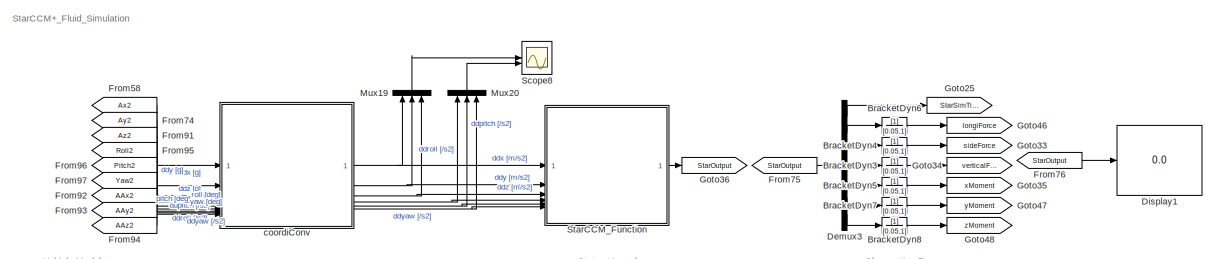
[diagram: root canvas - part 1/2, full width, top band]
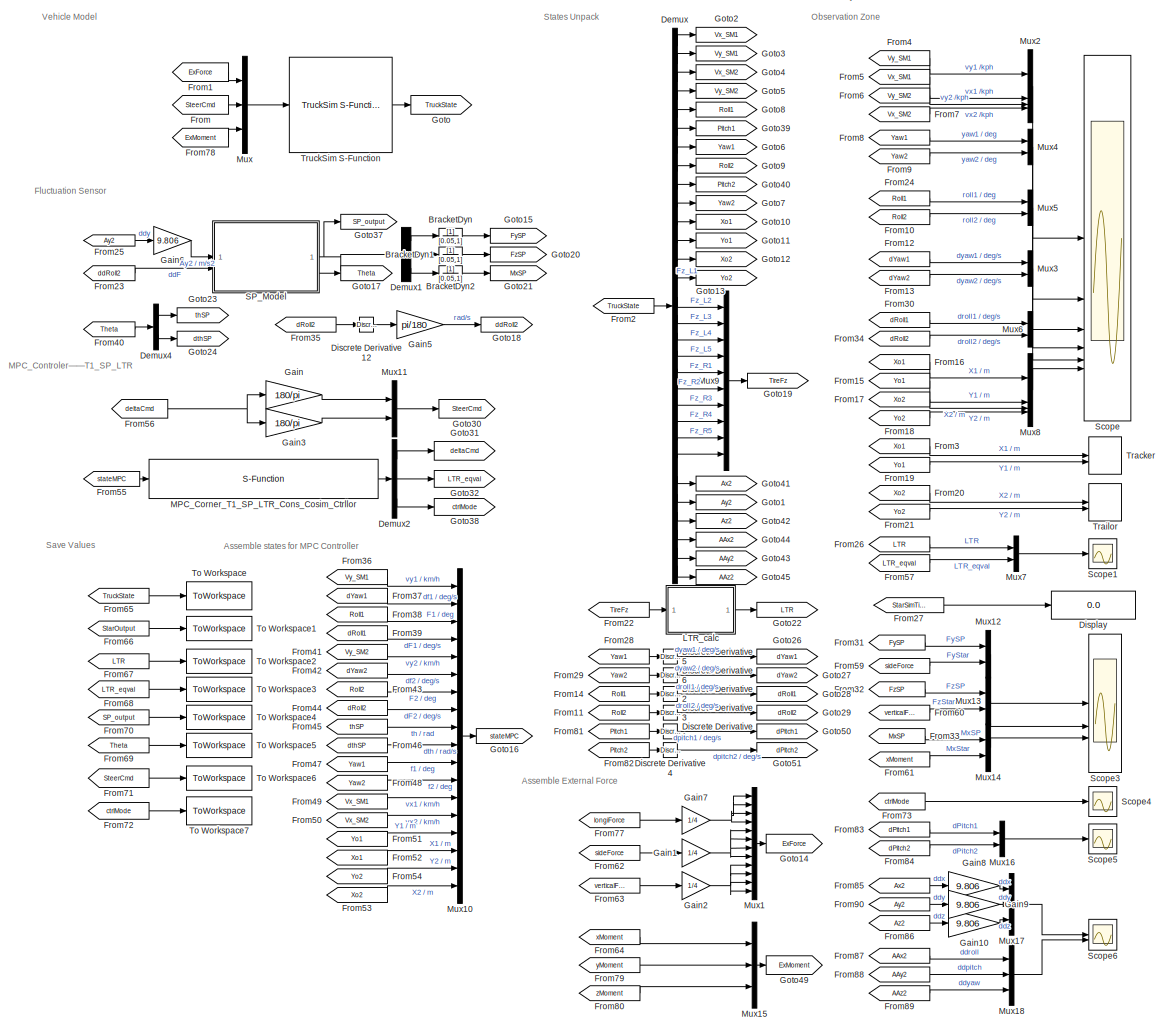
[diagram: root canvas - part 2/2, most of the canvas]
MODEL mdl_b47e900beb4a
KIND model
CONFIG AbsTol = auto
CONFIG EnableMultiTasking = off
CONFIG FixedStep = auto
CONFIG MaxStep = auto
CONFIG MinStep = auto
CONFIG RelTol = 1e-3
CONFIG SampleTimeConstraint = Unconstrained
CONFIG SolverName = VariableStepAuto
CONFIG StartTime = 0.0
CONFIG StopTime = 12
BLOCK [TransferFcn] BracketDyn
  Denominator = [0.05 1]
BLOCK [TransferFcn] BracketDyn1
  Denominator = [0.05 1]
BLOCK [TransferFcn] BracketDyn2
  Denominator = [0.05 1]
BLOCK [TransferFcn] BracketDyn3
  Denominator = [0.05 1]
BLOCK [TransferFcn] BracketDyn4
  Denominator = [0.05 1]
BLOCK [TransferFcn] BracketDyn5
  Denominator = [0.05 1]
BLOCK [TransferFcn] BracketDyn6
  Denominator = [0.05 1]
BLOCK [TransferFcn] BracketDyn7
  Denominator = [0.05 1]
BLOCK [TransferFcn] BracketDyn8
  Denominator = [0.05 1]
BLOCK [Demux] Demux
  Outputs = 30
BLOCK [Demux] Demux1
  Outputs = 3
BLOCK [Demux] Demux2
  Outputs = 3
BLOCK [Demux] Demux3
  Outputs = 7
BLOCK [Demux] Demux4
  Outputs = 2
BLOCK [Reference] Discrete Derivative1  REF=simulink/Discrete/Discrete Derivative
  SourceBlock = simulink/Discrete/Discrete Derivative
  SourceType = Discrete Derivative
BLOCK [Reference] Discrete Derivative12  REF=simulink/Discrete/Discrete Derivative
  SourceBlock = simulink/Discrete/Discrete Derivative
  SourceType = Discrete Derivative
BLOCK [Reference] Discrete Derivative2  REF=simulink/Discrete/Discrete Derivative
  SourceBlock = simulink/Discrete/Discrete Derivative
  SourceType = Discrete Derivative
BLOCK [Reference] Discrete Derivative3  REF=simulink/Discrete/Discrete Derivative
  SourceBlock = simulink/Discrete/Discrete Derivative
  SourceType = Discrete Derivative
BLOCK [Reference] Discrete Derivative4  REF=simulink/Discrete/Discrete Derivative
  SourceBlock = simulink/Discrete/Discrete Derivative
  SourceType = Discrete Derivative
BLOCK [Reference] Discrete Derivative5  REF=simulink/Discrete/Discrete Derivative
  SourceBlock = simulink/Discrete/Discrete Derivative
  SourceType = Discrete Derivative
BLOCK [Reference] Discrete Derivative6  REF=simulink/Discrete/Discrete Derivative
  NameLocation = top
  SourceBlock = simulink/Discrete/Discrete Derivative
  SourceType = Discrete Derivative
BLOCK [Display] Display
  Decimation = 1
BLOCK [Display] Display1
  Decimation = 1
BLOCK [From] From
  GotoTag = SteerCmd
BLOCK [From] From1
  GotoTag = ExForce
BLOCK [From] From10
  GotoTag = Roll2
BLOCK [From] From11
  GotoTag = Roll2
BLOCK [From] From12
  GotoTag = dYaw1
BLOCK [From] From13
  GotoTag = dYaw2
BLOCK [From] From14
  GotoTag = Roll1
BLOCK [From] From15
  GotoTag = Yo1
BLOCK [From] From16
  GotoTag = Xo1
BLOCK [From] From17
  GotoTag = Xo2
BLOCK [From] From18
  GotoTag = Yo2
BLOCK [From] From19
  GotoTag = Yo1
BLOCK [From] From2
  GotoTag = TruckState
BLOCK [From] From20
  GotoTag = Xo2
BLOCK [From] From21
  GotoTag = Yo2
BLOCK [From] From22
  GotoTag = TireFz
BLOCK [From] From23
  GotoTag = ddRoll2
BLOCK [From] From24
  GotoTag = Roll1
BLOCK [From] From25
  GotoTag = Ay2
BLOCK [From] From26
  GotoTag = LTR
BLOCK [From] From27
  GotoTag = StarSimTime
BLOCK [From] From28
  GotoTag = Yaw1
BLOCK [From] From29
  GotoTag = Yaw2
BLOCK [From] From3
  GotoTag = Xo1
BLOCK [From] From30
  GotoTag = dRoll1
BLOCK [From] From31
  GotoTag = FySP
BLOCK [From] From32
  GotoTag = FzSP
BLOCK [From] From33
  GotoTag = MxSP
BLOCK [From] From34
  GotoTag = dRoll2
BLOCK [From] From35
  GotoTag = dRoll2
BLOCK [From] From36
  GotoTag = Vy_SM1
BLOCK [From] From37
  GotoTag = dYaw1
BLOCK [From] From38
  GotoTag = Roll1
BLOCK [From] From39
  GotoTag = dRoll1
BLOCK [From] From4
  GotoTag = Vy_SM1
BLOCK [From] From40
  GotoTag = Theta
BLOCK [From] From41
  GotoTag = Vy_SM2
BLOCK [From] From42
  GotoTag = dYaw2
BLOCK [From] From43
  GotoTag = Roll2
BLOCK [From] From44
  GotoTag = dRoll2
BLOCK [From] From45
  GotoTag = thSP
BLOCK [From] From46
  GotoTag = dthSP
BLOCK [From] From47
  GotoTag = Yaw1
BLOCK [From] From48
  GotoTag = Yaw2
BLOCK [From] From49
  GotoTag = Vx_SM1
BLOCK [From] From5
  GotoTag = Vx_SM1
BLOCK [From] From50
  GotoTag = Vx_SM2
BLOCK [From] From51
  GotoTag = Yo1
BLOCK [From] From52
  GotoTag = Xo1
BLOCK [From] From53
  GotoTag = Xo2
BLOCK [From] From54
  GotoTag = Yo2
BLOCK [From] From55
  GotoTag = stateMPC
BLOCK [From] From56
  GotoTag = deltaCmd
BLOCK [From] From57
  GotoTag = LTR_eqval
BLOCK [From] From58
  GotoTag = Ax2
BLOCK [From] From59
  GotoTag = sideForce
BLOCK [From] From6
  GotoTag = Vy_SM2
BLOCK [From] From60
  GotoTag = verticalForce
BLOCK [From] From61
  GotoTag = xMoment
BLOCK [From] From62
  GotoTag = sideForce
BLOCK [From] From63
  GotoTag = verticalForce
BLOCK [From] From64
  GotoTag = xMoment
BLOCK [From] From65
  GotoTag = TruckState
BLOCK [From] From66
  GotoTag = StarOutput
BLOCK [From] From67
  GotoTag = LTR
BLOCK [From] From68
  GotoTag = LTR_eqval
BLOCK [From] From69
  GotoTag = Theta
BLOCK [From] From7
  GotoTag = Vx_SM2
BLOCK [From] From70
  GotoTag = SP_output
BLOCK [From] From71
  GotoTag = SteerCmd
BLOCK [From] From72
  GotoTag = ctrlMode
BLOCK [From] From73
  GotoTag = ctrlMode
BLOCK [From] From74
  GotoTag = Ay2
BLOCK [From] From75
  GotoTag = StarOutput
BLOCK [From] From76
  GotoTag = StarOutput
BLOCK [From] From77
  GotoTag = longiForce
BLOCK [From] From78
  GotoTag = ExMoment
BLOCK [From] From79
  GotoTag = yMoment
BLOCK [From] From8
  GotoTag = Yaw1
BLOCK [From] From80
  GotoTag = zMoment
BLOCK [From] From81
  GotoTag = Pitch1
BLOCK [From] From82
  GotoTag = Pitch2
BLOCK [From] From83
  GotoTag = dPitch1
BLOCK [From] From84
  GotoTag = dPitch2
BLOCK [From] From85
  GotoTag = Ax2
BLOCK [From] From86
  GotoTag = Az2
BLOCK [From] From87
  GotoTag = AAx2
BLOCK [From] From88
  GotoTag = AAy2
BLOCK [From] From89
  GotoTag = AAz2
BLOCK [From] From9
  GotoTag = Yaw2
BLOCK [From] From90
  GotoTag = Ay2
BLOCK [From] From91
  GotoTag = Az2
BLOCK [From] From92
  GotoTag = AAx2
BLOCK [From] From93
  GotoTag = AAy2
BLOCK [From] From94
  GotoTag = AAz2
BLOCK [From] From95
  GotoTag = Roll2
BLOCK [From] From96
  GotoTag = Pitch2
BLOCK [From] From97
  GotoTag = Yaw2
BLOCK [Gain] Gain
  Gain = 180/pi
BLOCK [Gain] Gain1
  Gain = 1/4
BLOCK [Gain] Gain10
  Gain = 9.806
BLOCK [Gain] Gain2
  Gain = 1/4
BLOCK [Gain] Gain3
  Gain = 180/pi
BLOCK [Gain] Gain5
  Gain = pi/180
BLOCK [Gain] Gain6
  Gain = 9.806
BLOCK [Gain] Gain7
  Gain = 1/4
BLOCK [Gain] Gain8
  Gain = 9.806
BLOCK [Gain] Gain9
  Gain = 9.806
BLOCK [Goto] Goto
  GotoTag = TruckState
BLOCK [Goto] Goto1
  GotoTag = Ay2
BLOCK [Goto] Goto10
  GotoTag = Xo1
BLOCK [Goto] Goto11
  GotoTag = Yo1
BLOCK [Goto] Goto12
  GotoTag = Xo2
BLOCK [Goto] Goto13
  GotoTag = Yo2
BLOCK [Goto] Goto14
  GotoTag = ExForce
BLOCK [Goto] Goto15
  GotoTag = FySP
BLOCK [Goto] Goto16
  GotoTag = stateMPC
BLOCK [Goto] Goto17
  GotoTag = Theta
BLOCK [Goto] Goto18
  GotoTag = ddRoll2
BLOCK [Goto] Goto19
  GotoTag = TireFz
BLOCK [Goto] Goto2
  GotoTag = Vx_SM1
BLOCK [Goto] Goto20
  GotoTag = FzSP
BLOCK [Goto] Goto21
  GotoTag = MxSP
BLOCK [Goto] Goto22
  GotoTag = LTR
BLOCK [Goto] Goto23
  GotoTag = thSP
BLOCK [Goto] Goto24
  GotoTag = dthSP
BLOCK [Goto] Goto25
  GotoTag = StarSimTime
BLOCK [Goto] Goto26
  GotoTag = dYaw1
BLOCK [Goto] Goto27
  GotoTag = dYaw2
BLOCK [Goto] Goto28
  GotoTag = dRoll1
BLOCK [Goto] Goto29
  GotoTag = dRoll2
BLOCK [Goto] Goto3
  GotoTag = Vy_SM1
BLOCK [Goto] Goto30
  GotoTag = SteerCmd
BLOCK [Goto] Goto31
  GotoTag = deltaCmd
BLOCK [Goto] Goto32
  GotoTag = LTR_eqval
BLOCK [Goto] Goto33
  GotoTag = sideForce
BLOCK [Goto] Goto34
  GotoTag = verticalForce
BLOCK [Goto] Goto35
  GotoTag = xMoment
BLOCK [Goto] Goto36
  GotoTag = StarOutput
BLOCK [Goto] Goto37
  GotoTag = SP_output
BLOCK [Goto] Goto38
  GotoTag = ctrlMode
BLOCK [Goto] Goto39
  GotoTag = Pitch1
BLOCK [Goto] Goto4
  GotoTag = Vx_SM2
BLOCK [Goto] Goto40
  GotoTag = Pitch2
BLOCK [Goto] Goto41
  GotoTag = Ax2
BLOCK [Goto] Goto42
  GotoTag = Az2
BLOCK [Goto] Goto43
  GotoTag = AAy2
BLOCK [Goto] Goto44
  GotoTag = AAx2
BLOCK [Goto] Goto45
  GotoTag = AAz2
BLOCK [Goto] Goto46
  GotoTag = longiForce
BLOCK [Goto] Goto47
  GotoTag = yMoment
BLOCK [Goto] Goto48
  GotoTag = zMoment
BLOCK [Goto] Goto49
  GotoTag = ExMoment
BLOCK [Goto] Goto5
  GotoTag = Vy_SM2
BLOCK [Goto] Goto50
  GotoTag = dPitch1
BLOCK [Goto] Goto51
  GotoTag = dPitch2
BLOCK [Goto] Goto6
  GotoTag = Yaw1
BLOCK [Goto] Goto7
  GotoTag = Yaw2
BLOCK [Goto] Goto8
  GotoTag = Roll1
BLOCK [Goto] Goto9
  GotoTag = Roll2
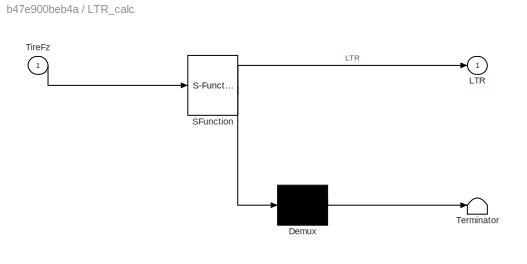
BLOCK [SubSystem] LTR_calc 
  ErrorFcn = Stateflow.Translate.translate
  PermitHierarchicalResolution = ExplicitOnly
  SFBlockType = MATLAB Function
  TreatAsAtomicUnit = on
BLOCK [Demux] LTR_calc / Demux 
  Outputs = 1
BLOCK [S-Function] LTR_calc / SFunction 
  EnableBusSupport = on
  FunctionName = sf_sfun
  PortCounts = [1 2]
  SFcnIsStateOwnerBlock = off
  SFunctionDeploymentMode = off
  Tag = Stateflow S-Function 2
BLOCK [Terminator] LTR_calc / Terminator 
BLOCK [Outport] LTR_calc /LTR
  VectorParamsAs1DForOutWhenUnconnected = off
BLOCK [Inport] LTR_calc /TireFz
BLOCK [S-Function] MPC_Corner_T1_SP_LTR_Cons_Cosim_Ctrllor
  EnableBusSupport = off
  FunctionName = MPC_Corner_TrajTrackT1_SP_LTR_Cons_Cosim_Ctrllor
  SFcnIsStateOwnerBlock = off
  SFunctionDeploymentMode = off
BLOCK [Mux] Mux
  DisplayOption = bar
  Inputs = 3
BLOCK [Mux] Mux1
  DisplayOption = bar
  Inputs = 12
BLOCK [Mux] Mux10
  DisplayOption = bar
  Inputs = 18
BLOCK [Mux] Mux11
  DisplayOption = bar
  Inputs = 2
BLOCK [Mux] Mux12
  DisplayOption = bar
  Inputs = 2
BLOCK [Mux] Mux13
  DisplayOption = bar
  Inputs = 2
BLOCK [Mux] Mux14
  DisplayOption = bar
  Inputs = 2
BLOCK [Mux] Mux15
  DisplayOption = bar
  Inputs = 3
BLOCK [Mux] Mux16
  DisplayOption = bar
  Inputs = 2
BLOCK [Mux] Mux17
  DisplayOption = bar
  Inputs = 3
BLOCK [Mux] Mux18
  DisplayOption = bar
  Inputs = 3
BLOCK [Mux] Mux19
  DisplayOption = bar
  Inputs = 3
  NameLocation = right
BLOCK [Mux] Mux2
  DisplayOption = bar
BLOCK [Mux] Mux20
  DisplayOption = bar
  Inputs = 3
  NameLocation = right
BLOCK [Mux] Mux3
  DisplayOption = bar
  Inputs = 2
BLOCK [Mux] Mux4
  DisplayOption = bar
  Inputs = 2
BLOCK [Mux] Mux5
  DisplayOption = bar
  Inputs = 2
BLOCK [Mux] Mux6
  DisplayOption = bar
  Inputs = 2
BLOCK [Mux] Mux7
  DisplayOption = bar
  Inputs = 2
BLOCK [Mux] Mux8
  DisplayOption = bar
BLOCK [Mux] Mux9
  DisplayOption = bar
  Inputs = 10
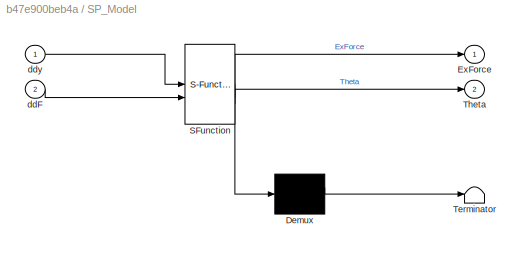
BLOCK [SubSystem] SP_Model
  ErrorFcn = Stateflow.Translate.translate
  PermitHierarchicalResolution = ExplicitOnly
  SFBlockType = MATLAB Function
  SystemSampleTime = 0.005
  TreatAsAtomicUnit = on
BLOCK [Demux] SP_Model/ Demux 
  Outputs = 1
BLOCK [S-Function] SP_Model/ SFunction 
  EnableBusSupport = on
  FunctionName = sf_sfun
  PortCounts = [2 3]
  SFcnIsStateOwnerBlock = off
  SFunctionDeploymentMode = off
  Tag = Stateflow S-Function 1
BLOCK [Terminator] SP_Model/ Terminator 
BLOCK [Outport] SP_Model/ExForce
  VectorParamsAs1DForOutWhenUnconnected = off
BLOCK [Outport] SP_Model/Theta
  Port = 2
  VectorParamsAs1DForOutWhenUnconnected = off
BLOCK [Inport] SP_Model/ddF
  Port = 2
BLOCK [Inport] SP_Model/ddy
BLOCK [Scope] Scope
  Floating = off
  NumInputPorts = 6
  ScopeSpecificationString = Simulink.scopes.TimeScopeBlockCfg('CurrentConfiguration', extmgr.ConfigurationSet(extmgr.Configuration('Core','General UI',true),extmgr.Configuration('Core','Source UI',true),extmgr.Configuration('Sources','WiredSimulink',true),extmgr.Configuration('Visuals','Time Domain',true,'SerializedDisplays',{struct('MinYLimReal','-10.00466','MaxYLimReal','79.37883','YLabelReal','','MinYLimMag','0.00000','Ma...<+5007ch>
BLOCK [Scope] Scope1
  Floating = off
  NumInputPorts = 1
  ScopeSpecificationString = Simulink.scopes.TimeScopeBlockCfg('CurrentConfiguration', extmgr.ConfigurationSet(extmgr.Configuration('Core','General UI',true),extmgr.Configuration('Core','Source UI',true),extmgr.Configuration('Sources','WiredSimulink',true,'DataLoggingVariableName','ScopeData1'),extmgr.Configuration('Visuals','Time Domain',true,'SerializedDisplays',{struct('MinYLimReal','-0.96674','MaxYLimReal','0.93459','YLab...<+1471ch>
BLOCK [Scope] Scope3
  Floating = off
  NumInputPorts = 3
  ScopeSpecificationString = Simulink.scopes.TimeScopeBlockCfg('CurrentConfiguration', extmgr.ConfigurationSet(extmgr.Configuration('Core','General UI',true),extmgr.Configuration('Core','Source UI',true),extmgr.Configuration('Sources','WiredSimulink',true,'DataLoggingVariableName','ScopeData1'),extmgr.Configuration('Visuals','Time Domain',true,'SerializedDisplays',{struct('MinYLimReal','-64052.81649','MaxYLimReal','91376.9143...<+2786ch>
BLOCK [Scope] Scope4
  Floating = off
  NumInputPorts = 1
  ScopeSpecificationString = Simulink.scopes.TimeScopeBlockCfg('CurrentConfiguration', extmgr.ConfigurationSet(extmgr.Configuration('Core','General UI',true),extmgr.Configuration('Core','Source UI',true),extmgr.Configuration('Sources','WiredSimulink',true,'DataLoggingVariableName','ScopeData1'),extmgr.Configuration('Visuals','Time Domain',true,'SerializedDisplays',{struct('MinYLimReal','0.9','MaxYLimReal','1.1','YLabelReal','...<+1401ch>
BLOCK [Scope] Scope5
  Floating = off
  NumInputPorts = 1
  ScopeSpecificationString = Simulink.scopes.TimeScopeBlockCfg('CurrentConfiguration', extmgr.ConfigurationSet(extmgr.Configuration('Core','General UI',true),extmgr.Configuration('Core','Source UI',true),extmgr.Configuration('Sources','WiredSimulink',true,'DataLoggingVariableName','ScopeData1'),extmgr.Configuration('Visuals','Time Domain',true,'SerializedDisplays',{struct('MinYLimReal','-0.96674','MaxYLimReal','0.93459','YLab...<+1408ch>
BLOCK [Scope] Scope6
  Floating = off
  NumInputPorts = 2
  ScopeSpecificationString = Simulink.scopes.TimeScopeBlockCfg('CurrentConfiguration', extmgr.ConfigurationSet(extmgr.Configuration('Core','General UI',true),extmgr.Configuration('Core','Source UI',true),extmgr.Configuration('Sources','WiredSimulink',true,'DataLoggingVariableName','ScopeData2'),extmgr.Configuration('Visuals','Time Domain',true,'SerializedDisplays',{struct('MinYLimReal','-5.2633','MaxYLimReal','4.48398','YLabe...<+2075ch>
BLOCK [Scope] Scope8
  Floating = off
  NumInputPorts = 2
  ScopeSpecificationString = Simulink.scopes.TimeScopeBlockCfg('CurrentConfiguration', extmgr.ConfigurationSet(extmgr.Configuration('Core','General UI',true),extmgr.Configuration('Core','Source UI',true),extmgr.Configuration('Sources','WiredSimulink',true,'DataLoggingVariableName','ScopeData2'),extmgr.Configuration('Visuals','Time Domain',true,'SerializedDisplays',{struct('MinYLimReal','-13.70673','MaxYLimReal','3.22664','YLa...<+2079ch>
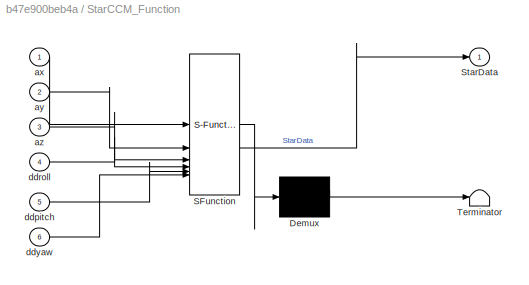
BLOCK [SubSystem] StarCCM_Function
  ErrorFcn = Stateflow.Translate.translate
  PermitHierarchicalResolution = ExplicitOnly
  SFBlockType = MATLAB Function
  SystemSampleTime = [timeStep 0]
  TreatAsAtomicUnit = on
BLOCK [Demux] StarCCM_Function/ Demux 
  Outputs = 1
BLOCK [S-Function] StarCCM_Function/ SFunction 
  EnableBusSupport = on
  FunctionName = sf_sfun
  PortCounts = [6 2]
  SFcnIsStateOwnerBlock = off
  SFunctionDeploymentMode = off
  Tag = Stateflow S-Function 3
BLOCK [Terminator] StarCCM_Function/ Terminator 
BLOCK [Outport] StarCCM_Function/StarData
  VectorParamsAs1DForOutWhenUnconnected = off
BLOCK [Inport] StarCCM_Function/ax
BLOCK [Inport] StarCCM_Function/ay
  Port = 2
BLOCK [Inport] StarCCM_Function/az
  Port = 3
BLOCK [Inport] StarCCM_Function/ddpitch
  Port = 5
BLOCK [Inport] StarCCM_Function/ddroll
  Port = 4
BLOCK [Inport] StarCCM_Function/ddyaw
  Port = 6
BLOCK [ToWorkspace] To Workspace
  FixptAsFi = on
  MaxDataPoints = inf
  SampleTime = -1
  SaveFormat = Timeseries
  VariableName = TruckState
BLOCK [ToWorkspace] To Workspace1
  FixptAsFi = on
  MaxDataPoints = inf
  SampleTime = -1
  SaveFormat = Timeseries
  VariableName = StarOutput
BLOCK [ToWorkspace] To Workspace2
  FixptAsFi = on
  MaxDataPoints = inf
  SampleTime = -1
  SaveFormat = Timeseries
  VariableName = LTR
BLOCK [ToWorkspace] To Workspace3
  FixptAsFi = on
  MaxDataPoints = inf
  SampleTime = -1
  SaveFormat = Timeseries
  VariableName = LTR_eqval
BLOCK [ToWorkspace] To Workspace4
  FixptAsFi = on
  MaxDataPoints = inf
  SampleTime = -1
  SaveFormat = Timeseries
  VariableName = SP_output
BLOCK [ToWorkspace] To Workspace5
  FixptAsFi = on
  MaxDataPoints = inf
  SampleTime = -1
  SaveFormat = Timeseries
  VariableName = Theta
BLOCK [ToWorkspace] To Workspace6
  FixptAsFi = on
  MaxDataPoints = inf
  SampleTime = -1
  SaveFormat = Timeseries
  VariableName = SteerCmd
BLOCK [ToWorkspace] To Workspace7
  FixptAsFi = on
  MaxDataPoints = inf
  SampleTime = -1
  SaveFormat = Timeseries
  VariableName = ctrlMode
BLOCK [Record] Tracker
  CompatibilityTag = XY
  FileSettingsInternal = {"entries":[{"content":{"excelSettings":{"content":{},"type":"Streamout.ExcelSettings"}},"type":"Streamout.FileSettingStorage","uuid":"7ae4536e-e7bc-4424-a4e1-f2e9e0387e01"}],"packageUris":["http://schema.mathworks.com/mf0/streamout_blocks/R2020a"],"version":"1.0"}
  Layout = [1 1]
  SignalsInternal = {"entries":[{"content":{"signals":[{"content":{"blockPath":["ALGO_Corner_TrajTrack_MPC_T1_SP_LTR_Cosim_3D/Tracker"],"dimensions":[1],"domain":"ALGO_Corner_TrajTrack_MPC_T1_SP_LTR_Cosim_3D/Tracker","lineColor":"#a2142f","plots":[1],"port":1,"signalID":16,"signalName":"X1 / m"},"type":"RecordBlkView.Signal","uuid":"78f39a7f-c97b-47b8-a87e-915073ed88bb"},{"content":{"blockPath":["ALGO_Corner_TrajTrac...<+449ch>
  VisualizationBindings = {"xyplotplugin":{"info":[{"series":[{"bindingParametersList":[{"parameter":"X-Axis","signalID":16,"signalName":"X1 \/ m"},{"parameter":"Y-Axis","signalID":19,"signalName":"Y1 \/ m"}],"seriesID":24138}],"subplotID":1}]}}
  st = -1
BLOCK [Record] Trailor 
  Commented = on
  CompatibilityTag = XY
  FileSettingsInternal = {"entries":[{"content":{"excelSettings":{"content":{},"type":"Streamout.ExcelSettings"}},"type":"Streamout.FileSettingStorage","uuid":"4c0e0dd3-d7e3-4a41-911e-3527c59e3239"}],"packageUris":["http://schema.mathworks.com/mf0/streamout_blocks/R2020a"],"version":"1.0"}
  Layout = [1 1]
  SignalsInternal = {"entries":[{"content":{"signals":[{"content":{"blockPath":["ALGO_Corner_TrajTrack_MPC_T1_SP_LTR_Cosim_3D/Trailor "],"dimensions":[1],"domain":"ALGO_Corner_TrajTrack_MPC_T1_SP_LTR_Cosim_3D/Trailor ","lineColor":"#a2142f","plots":[1],"port":1,"signalID":8,"signalName":"XY Graph:1"},"type":"RecordBlkView.Signal","uuid":"950392ac-f098-49cf-ad9d-31ae19f60618"},{"content":{"blockPath":["ALGO_Corner_Tra...<+460ch>
  VisualizationBindings = {"xyplotplugin":{"info":[{"series":[{"bindingParametersList":[{"parameter":"X-Axis","signalID":8,"signalName":"XY Graph:1"},{"parameter":"Y-Axis","signalID":11,"signalName":"XY Graph:2"}],"seriesID":18457}],"subplotID":1}]}}
  st = -1
BLOCK [Reference] TruckSim S-Function  REF=Solver_SF/TruckSim S-Function
  Priority = 1
  SourceBlock = Solver_SF/TruckSim S-Function
  SourceProductName = TruckSim S-Function
  SourceType = Vehicle math model library
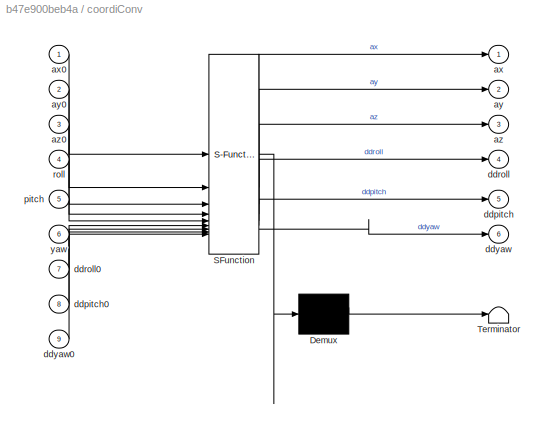
BLOCK [SubSystem] coordiConv
  ErrorFcn = Stateflow.Translate.translate
  LibrarySourceBlock = simulink/User-Defined\nFunctions/MATLAB Function
  PermitHierarchicalResolution = ExplicitOnly
  SFBlockType = MATLAB Function
  TreatAsAtomicUnit = on
BLOCK [Demux] coordiConv/ Demux 
  Outputs = 1
BLOCK [S-Function] coordiConv/ SFunction 
  EnableBusSupport = on
  FunctionName = sf_sfun
  PortCounts = [9 7]
  SFcnIsStateOwnerBlock = off
  SFunctionDeploymentMode = off
  Tag = Stateflow S-Function 4
BLOCK [Terminator] coordiConv/ Terminator 
BLOCK [Outport] coordiConv/ax
BLOCK [Inport] coordiConv/ax0
BLOCK [Outport] coordiConv/ay
  Port = 2
BLOCK [Inport] coordiConv/ay0
  Port = 2
BLOCK [Outport] coordiConv/az
  Port = 3
BLOCK [Inport] coordiConv/az0
  Port = 3
BLOCK [Outport] coordiConv/ddpitch
  Port = 5
BLOCK [Inport] coordiConv/ddpitch0
  Port = 8
BLOCK [Outport] coordiConv/ddroll
  Port = 4
BLOCK [Inport] coordiConv/ddroll0
  Port = 7
BLOCK [Outport] coordiConv/ddyaw
  Port = 6
BLOCK [Inport] coordiConv/ddyaw0
  Port = 9
BLOCK [Inport] coordiConv/pitch
  Port = 5
BLOCK [Inport] coordiConv/roll
  Port = 4
BLOCK [Inport] coordiConv/yaw
  Port = 6
ANNOTATION (root): Assemble External Force
ANNOTATION (root): Assemble states for MPC Controller
ANNOTATION (root): Fluctuation Sensor
ANNOTATION (root): MPC_Controler——T1_SP_LTR
ANNOTATION (root): Observation Zone
ANNOTATION (root): Save Values
ANNOTATION (root): StarCCM+_Fluid_Simulation
ANNOTATION (root): States Unpack
ANNOTATION (root): Vehicle Model
LINE BracketDyn1:1 -> Goto20:1
LINE BracketDyn2:1 -> Goto21:1
LINE BracketDyn3:1 -> Goto34:1
LINE BracketDyn4:1 -> Goto33:1
LINE BracketDyn5:1 -> Goto35:1
LINE BracketDyn6:1 -> Goto46:1
LINE BracketDyn7:1 -> Goto47:1
LINE BracketDyn8:1 -> Goto48:1
LINE BracketDyn:1 -> Goto15:1
LINE Demux1:1 -> BracketDyn:1
LINE Demux1:2 -> BracketDyn1:1
LINE Demux1:3 -> BracketDyn2:1
LINE Demux2:1 -> Goto31:1
LINE Demux2:2 -> Goto32:1
LINE Demux2:3 -> Goto38:1
LINE Demux3:1 -> Goto25:1
LINE Demux3:2 -> BracketDyn6:1
LINE Demux3:3 -> BracketDyn4:1
LINE Demux3:4 -> BracketDyn3:1
LINE Demux3:5 -> BracketDyn5:1
LINE Demux3:6 -> BracketDyn7:1
LINE Demux3:7 -> BracketDyn8:1
LINE Demux4:1 -> Goto23:1
LINE Demux4:2 -> Goto24:1
LINE Demux:1 -> Goto2:1
LINE Demux:10 -> Goto7:1
LINE Demux:11 -> Goto10:1
LINE Demux:12 -> Goto11:1
LINE Demux:13 -> Goto12:1
LINE Demux:14 -> Goto13:1
LINE Demux:15 -> Mux9:1
LINE Demux:16 -> Mux9:2
LINE Demux:17 -> Mux9:3
LINE Demux:18 -> Mux9:4
LINE Demux:19 -> Mux9:5
LINE Demux:2 -> Goto3:1
LINE Demux:20 -> Mux9:6
LINE Demux:21 -> Mux9:7
LINE Demux:22 -> Mux9:8
LINE Demux:23 -> Mux9:9
LINE Demux:24 -> Mux9:10
LINE Demux:25 -> Goto41:1
LINE Demux:26 -> Goto1:1
LINE Demux:27 -> Goto42:1
LINE Demux:28 -> Goto44:1
LINE Demux:29 -> Goto43:1
LINE Demux:3 -> Goto4:1
LINE Demux:30 -> Goto45:1
LINE Demux:4 -> Goto5:1
LINE Demux:5 -> Goto8:1
LINE Demux:6 -> Goto39:1
LINE Demux:7 -> Goto6:1
LINE Demux:8 -> Goto9:1
LINE Demux:9 -> Goto40:1
LINE Discrete Derivative12:1 -> Gain5:1
LINE Discrete Derivative1:1 -> Goto50:1
LINE Discrete Derivative2:1 -> Goto28:1
LINE Discrete Derivative3:1 -> Goto29:1
LINE Discrete Derivative4:1 -> Goto51:1
LINE Discrete Derivative5:1 -> Goto26:1
LINE Discrete Derivative6:1 -> Goto27:1
LINE From10:1 -> Mux5:2
LINE From11:1 -> Discrete Derivative3:1
LINE From12:1 -> Mux3:1
LINE From13:1 -> Mux3:2
LINE From14:1 -> Discrete Derivative2:1
LINE From15:1 -> Mux8:2
LINE From16:1 -> Mux8:1
LINE From17:1 -> Mux8:3
LINE From18:1 -> Mux8:4
LINE From19:1 -> Tracker:2
LINE From1:1 -> Mux:1
LINE From20:1 -> Trailor :1
LINE From21:1 -> Trailor :2
LINE From22:1 -> LTR_calc :1
LINE From23:1 -> SP_Model:2
LINE From24:1 -> Mux5:1
LINE From25:1 -> Gain6:1
LINE From26:1 -> Mux7:1
LINE From27:1 -> Display:1
LINE From28:1 -> Discrete Derivative5:1
LINE From29:1 -> Discrete Derivative6:1
LINE From2:1 -> Demux:1
LINE From30:1 -> Mux6:1
LINE From31:1 -> Mux12:1
LINE From32:1 -> Mux13:1
LINE From33:1 -> Mux14:1
LINE From34:1 -> Mux6:2
LINE From35:1 -> Discrete Derivative12:1
LINE From36:1 -> Mux10:1
LINE From37:1 -> Mux10:2
LINE From38:1 -> Mux10:3
LINE From39:1 -> Mux10:4
LINE From3:1 -> Tracker:1
LINE From40:1 -> Demux4:1
LINE From41:1 -> Mux10:5
LINE From42:1 -> Mux10:6
LINE From43:1 -> Mux10:7
LINE From44:1 -> Mux10:8
LINE From45:1 -> Mux10:9
LINE From46:1 -> Mux10:10
LINE From47:1 -> Mux10:11
LINE From48:1 -> Mux10:12
LINE From49:1 -> Mux10:13
LINE From4:1 -> Mux2:1
LINE From50:1 -> Mux10:14
LINE From51:1 -> Mux10:15
LINE From52:1 -> Mux10:16
LINE From53:1 -> Mux10:18
LINE From54:1 -> Mux10:17
LINE From55:1 -> MPC_Corner_T1_SP_LTR_Cons_Cosim_Ctrllor:1
NET From56:1 -> Gain3:1, Gain:1
LINE From57:1 -> Mux7:2
LINE From58:1 -> coordiConv:1
LINE From59:1 -> Mux12:2
LINE From5:1 -> Mux2:2
LINE From60:1 -> Mux13:2
LINE From61:1 -> Mux14:2
LINE From62:1 -> Gain1:1
LINE From63:1 -> Gain2:1
LINE From64:1 -> Mux15:1
LINE From65:1 -> To Workspace:1
LINE From66:1 -> To Workspace1:1
LINE From67:1 -> To Workspace2:1
LINE From68:1 -> To Workspace3:1
LINE From69:1 -> To Workspace5:1
LINE From6:1 -> Mux2:3
LINE From70:1 -> To Workspace4:1
LINE From71:1 -> To Workspace6:1
LINE From72:1 -> To Workspace7:1
LINE From73:1 -> Scope4:1
LINE From74:1 -> coordiConv:2
LINE From75:1 -> Demux3:1
LINE From76:1 -> Display1:1
LINE From77:1 -> Gain7:1
LINE From78:1 -> Mux:3
LINE From79:1 -> Mux15:2
LINE From7:1 -> Mux2:4
LINE From80:1 -> Mux15:3
LINE From81:1 -> Discrete Derivative1:1
LINE From82:1 -> Discrete Derivative4:1
LINE From83:1 -> Mux16:1
LINE From84:1 -> Mux16:2
LINE From85:1 -> Gain8:1
LINE From86:1 -> Gain10:1
LINE From87:1 -> Mux18:1
LINE From88:1 -> Mux18:2
LINE From89:1 -> Mux18:3
LINE From8:1 -> Mux4:1
LINE From90:1 -> Gain9:1
LINE From91:1 -> coordiConv:3
LINE From92:1 -> coordiConv:7
LINE From93:1 -> coordiConv:8
LINE From94:1 -> coordiConv:9
LINE From95:1 -> coordiConv:4
LINE From96:1 -> coordiConv:5
LINE From97:1 -> coordiConv:6
LINE From9:1 -> Mux4:2
LINE From:1 -> Mux:2
LINE Gain10:1 -> Mux17:3
NET Gain1:1 -> Mux1:5, Mux1:6, Mux1:7, Mux1:8
NET Gain2:1 -> Mux1:10, Mux1:11, Mux1:12, Mux1:9
LINE Gain3:1 -> Mux11:2
LINE Gain5:1 -> Goto18:1
LINE Gain6:1 -> SP_Model:1
NET Gain7:1 -> Mux1:1, Mux1:2, Mux1:3, Mux1:4
LINE Gain8:1 -> Mux17:1
LINE Gain9:1 -> Mux17:2
LINE Gain:1 -> Mux11:1
LINE LTR_calc :1 -> Goto22:1
LINE MPC_Corner_T1_SP_LTR_Cons_Cosim_Ctrllor:1 -> Demux2:1
LINE Mux10:1 -> Goto16:1
LINE Mux11:1 -> Goto30:1
LINE Mux12:1 -> Scope3:1
LINE Mux13:1 -> Scope3:2
LINE Mux14:1 -> Scope3:3
LINE Mux15:1 -> Goto49:1
LINE Mux16:1 -> Scope5:1
LINE Mux17:1 -> Scope6:1
LINE Mux18:1 -> Scope6:2
LINE Mux19:1 -> Scope8:1
LINE Mux1:1 -> Goto14:1
LINE Mux20:1 -> Scope8:2
LINE Mux2:1 -> Scope:1
LINE Mux3:1 -> Scope:4
LINE Mux4:1 -> Scope:2
LINE Mux5:1 -> Scope:3
LINE Mux6:1 -> Scope:5
LINE Mux7:1 -> Scope1:1
LINE Mux8:1 -> Scope:6
LINE Mux9:1 -> Goto19:1
LINE Mux:1 -> TruckSim S-Function:1
NET SP_Model:1 -> Demux1:1, Goto37:1
LINE SP_Model:2 -> Goto17:1
LINE StarCCM_Function:1 -> Goto36:1
LINE TruckSim S-Function:1 -> Goto:1
NET coordiConv:1 -> Mux19:1, StarCCM_Function:1
NET coordiConv:2 -> Mux19:2, StarCCM_Function:2
NET coordiConv:3 -> Mux19:3, StarCCM_Function:3
NET coordiConv:4 -> Mux20:1, StarCCM_Function:4
NET coordiConv:5 -> Mux20:2, StarCCM_Function:5
NET coordiConv:6 -> Mux20:3, StarCCM_Function:6
note: NET lines group one-source signal fan-out (src -> all destinations, sorted); 1:1 wires keep LINE
CHART SP_Model states=1 transitions=1
  STATE_LABEL 'eML_blk_kernel()'
  STATE_LABEL 'SCRIPT:\nfunction [ExForce,Theta] = SP_Model(ddy,ddF)\npersistent sim_param Ts y0\n%% 定义摆\nif isempty(Ts)\n%SP模型，共5个参数拟合\n% 参数 m1 h0 hp lp coeff\nx=[10890,1.5,0.13,0.97,0.13];\n% 获取参数\nsim_param=getParam_SP(x);\n%初始状态量\ny0=zeros(9,1);\n%采样时间\nTs=0.005;\nend\n\ny=y0;\n\n%% 求解微分方程\ndy=zeros(9,1);\ndy(1)=y(2);\ndy(2)=ddy;\ndy(3)=(dy(2)-y(3))/Ts;\ndy(4)=y(5);\ndy(5)=ddF;\ndy(6)=(dy(5)-y(6))/Ts;\ndy(7)=y(8);\ndy(8)=calc_ddth_SP(...<+1767ch>'
CHART LTR_calc
 states=1 transitions=1
  STATE_LABEL 'eML_blk_kernel()'
  STATE_LABEL 'SCRIPT:\nfunction LTR = fcn(TireFz)\n% 分配物理量\nFzL=sum(TireFz(1:5));\nFzR=sum(TireFz(6:10));\n% 进行计算\nLTR=(FzL-FzR)/(FzL+FzR);\nend\n'
CHART StarCCM_Function states=1 transitions=1
  STATE_LABEL 'eML_blk_kernel()'
  STATE_LABEL "SCRIPT:\nfunction StarData = StarCCM_Fun(ax,ay,az,ddroll,ddpitch,ddyaw)\n%定义标志位路径\njava_flag = 'java_flag.csv';\nmatlab_flag = 'matlab_flag.csv';\n%定义输出文件路径\njava_output = 'java_output.csv';\nmatlab_output = 'matlab_output.csv';\n\n%状态1：从StarCCM+的输出文件中提取数据\n\nDataConv=getLastLineNum(java_output);\nStarData=DataConv(1:7);\n\n%状态2：Simulink利用获得的数据进行下一个仿真步\n\n%状态3：Simulink输出数据文件，暂停自身的仿真\nMatlab_Data=[ax,ay,az,ddroll,d...<+2949ch>"
CHART coordiConv states=1 transitions=1
  STATE_LABEL 'eML_blk_kernel()'
  STATE_LABEL 'SCRIPT:\nfunction [ax,ay,az,ddroll,ddpitch,ddyaw]= coordiConv(ax0,ay0,az0,roll, pitch, yaw,ddroll0,ddpitch0,ddyaw0)%输入的旋转是角度degree\npersistent g\nif isempty(g)\n    g = 9.806;\nend\n\nvec = Rotation3D([0;0;g], roll, pitch, yaw);\n\n\nax = -(vec(1) + ax0*g);\nay = -(vec(2) + ay0*g);\naz = -(vec(3) + az0*g);\n\nddroll = -ddroll0;\nddpitch = -ddpitch0;\nddyaw = -ddyaw0;\n\nend\n\n\nfunction vec = Rotation3D(vec0, roll, p...<+534ch>'
CHART  states=0 transitions=0
CHART  states=0 transitions=0
CHART  states=0 transitions=0
CHART  states=0 transitions=0
